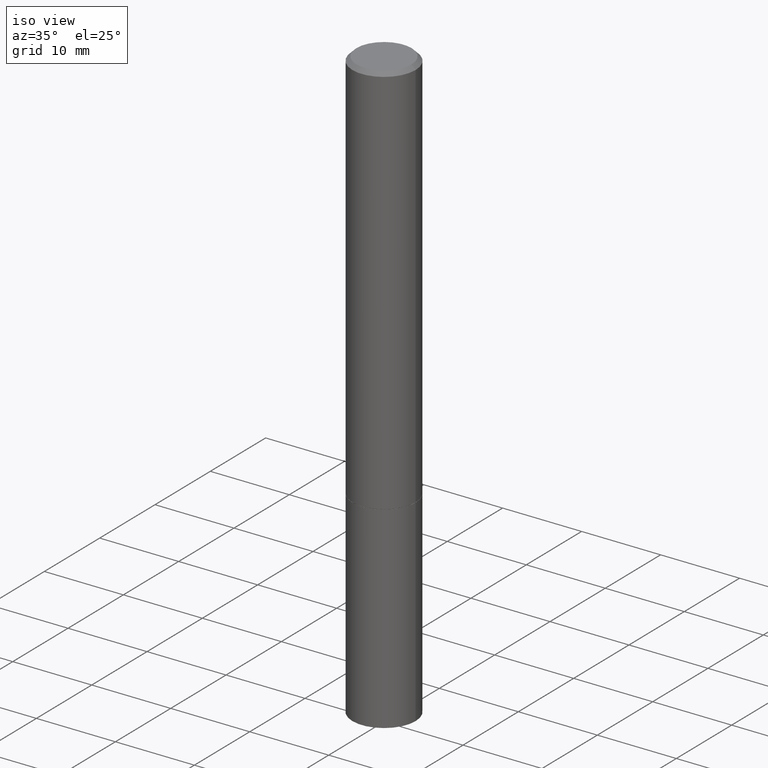
[diagram: clean part render]
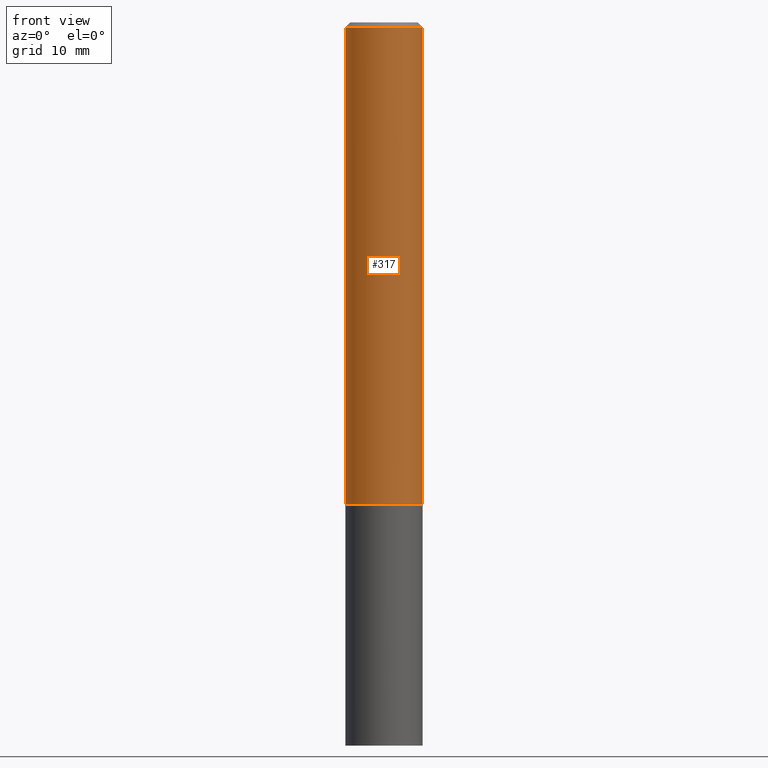
[diagram: tour spotlight — one face highlighted and labeled with its STEP entity id]
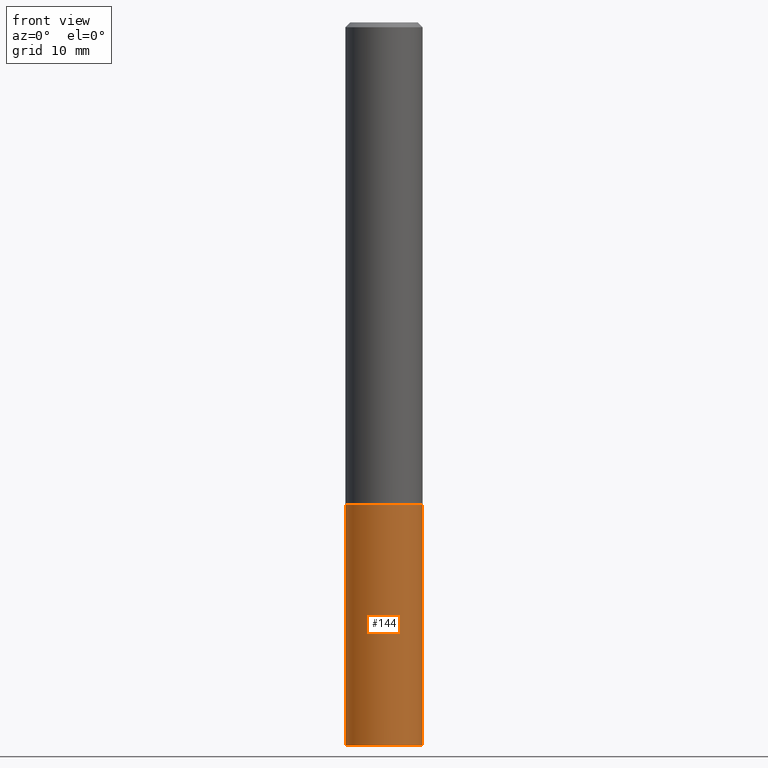
[diagram: tour spotlight — one face highlighted and labeled with its STEP entity id]
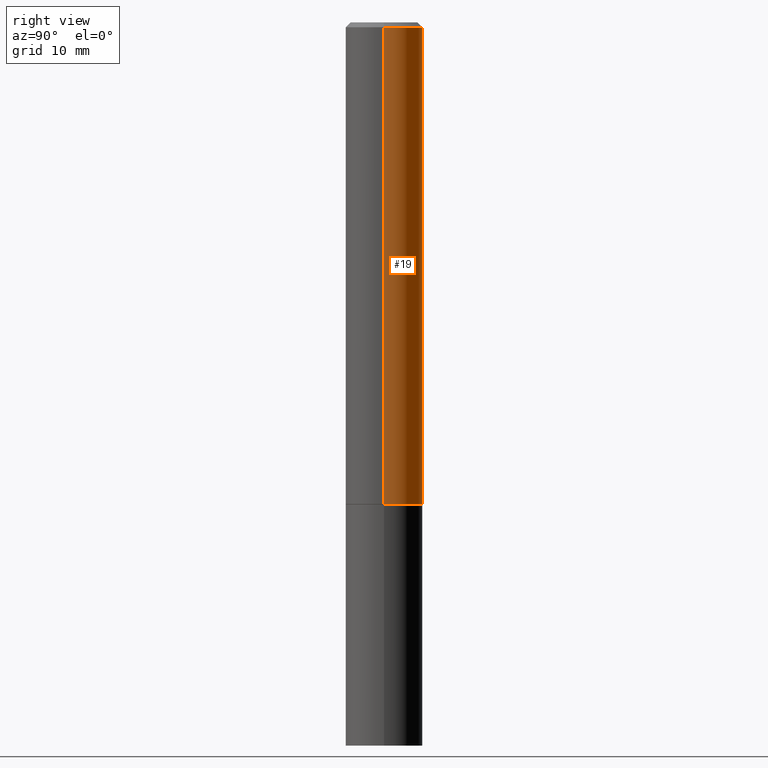
[diagram: tour spotlight — one face highlighted and labeled with its STEP entity id]
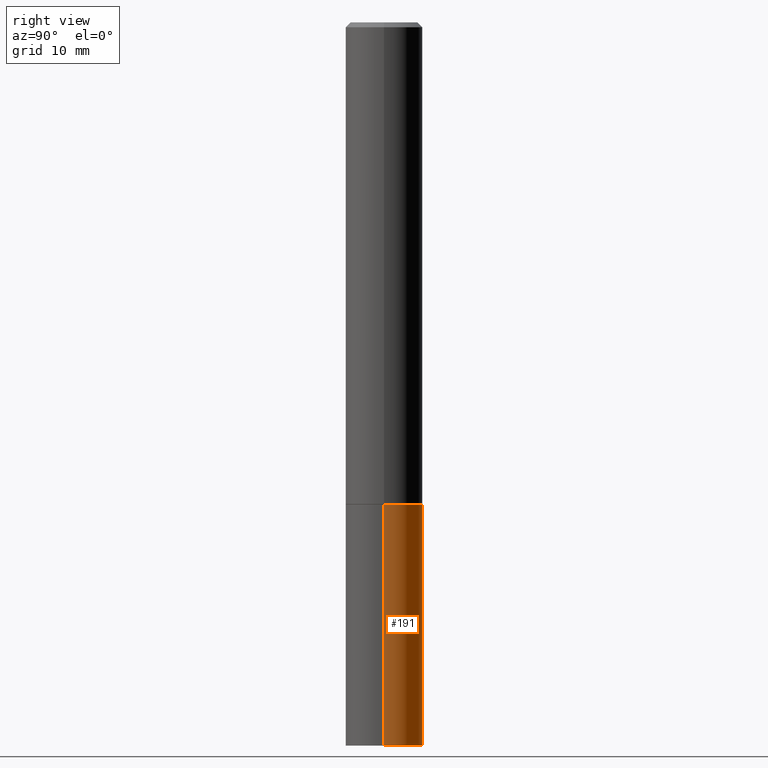
[diagram: tour spotlight — one face highlighted and labeled with its STEP entity id]
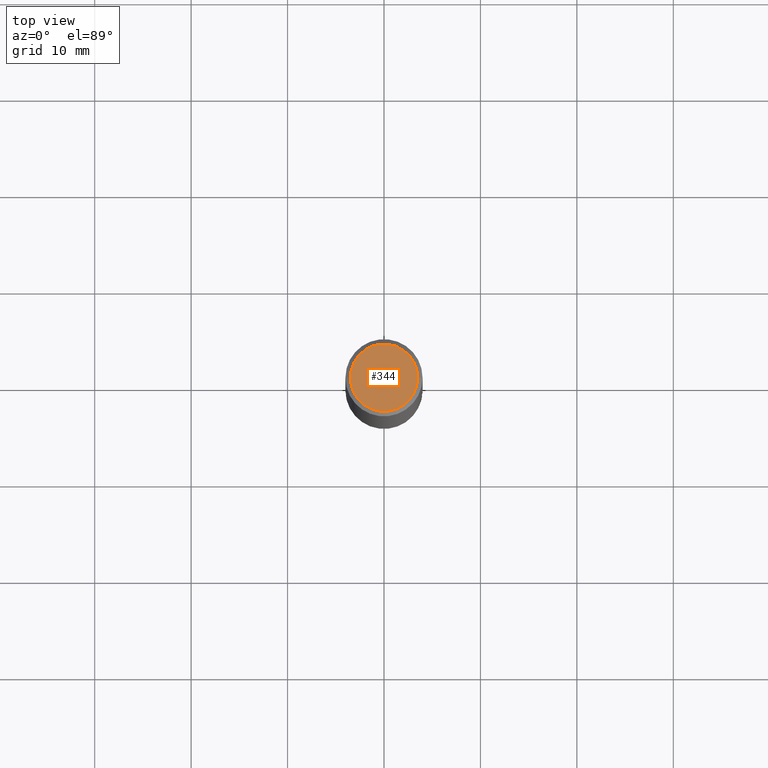
[diagram: tour spotlight — one face highlighted and labeled with its STEP entity id]
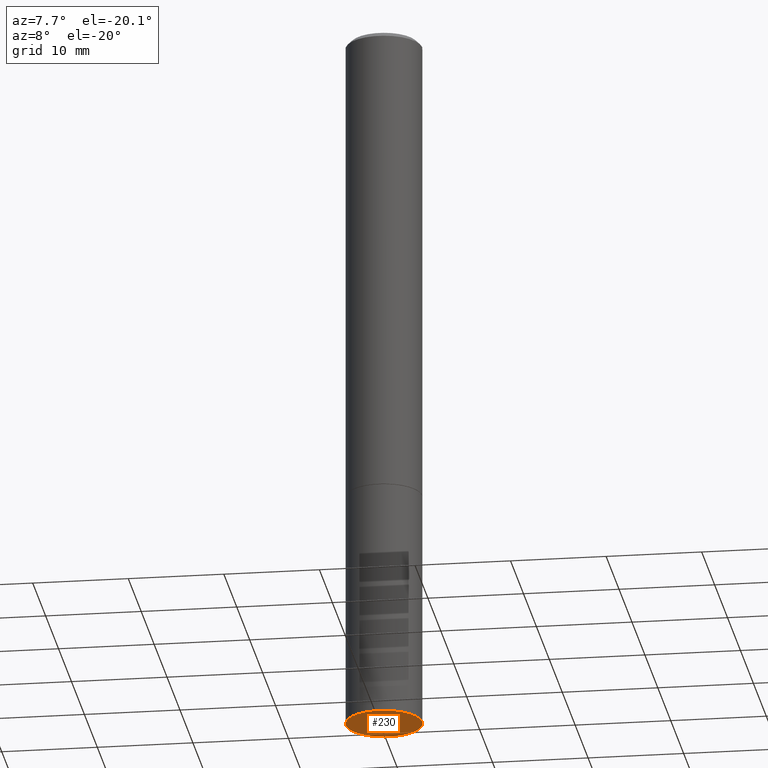
[diagram: tour spotlight — one face highlighted and labeled with its STEP entity id]
A machine part: a face-by-face anatomy tour. The part has 12 B-rep faces; the first image is the clean iso view, then the 6 largest visible faces are spotlighted one at a time (largest first), each with its STEP entity span.

Face 1 — front view, entity #317. In plain terms, the highlighted cylindrical surface (partial cylindrical patch) has radius 4.0005 mm, axis along (-0, 0, 1).
Definition (entity closure, byte-faithful):
#4 = CARTESIAN_POINT ( 'NONE',  ( -0.1574999999999998901, 1.119104808822157012E-15, -7.747322767151471379E-30 ) ) ;
#6 = VERTEX_POINT ( 'NONE', #175 ) ;
#13 = CARTESIAN_POINT ( 'NONE',  ( 4.890937612370280165E-31, -6.982962677686301470E-17, -0.02000000000000003164 ) ) ;
#21 = AXIS2_PLACEMENT_3D ( 'NONE', #340, #167, #64 ) ;
#26 = LINE ( 'NONE', #114, #40 ) ;
#31 = CIRCLE ( 'NONE', #239, 0.1575000000000000011 ) ;
#33 = EDGE_CURVE ( 'NONE', #6, #146, #216, .T. ) ;
#40 = VECTOR ( 'NONE', #333, 39.37007874015748143 ) ;
#47 = ORIENTED_EDGE ( 'NONE', *, *, #196, .T. ) ;
#64 = DIRECTION ( 'NONE',  ( 1.000000000000000000, -6.982962677686266711E-15, 4.876176775795935793E-29 ) ) ;
#66 = CARTESIAN_POINT ( 'NONE',  ( 4.811459876169255671E-29, -6.869489534173887122E-15, -1.967499999999999805 ) ) ;
#75 = ORIENTED_EDGE ( 'NONE', *, *, #358, .F. ) ;
#78 = CARTESIAN_POINT ( 'NONE',  ( -0.1575000000000000011, -2.350554771653214846E-15, -1.967499999999999805 ) ) ;
#85 = CARTESIAN_POINT ( 'NONE',  ( 0.1574999999999997791, -1.150358061425877894E-15, -0.02000000000000003164 ) ) ;
#87 = EDGE_CURVE ( 'NONE', #259, #284, #31, .T. ) ;
#91 = DIRECTION ( 'NONE',  ( -2.445468806185136877E-29, 3.491481338843145188E-15, 1.000000000000000000 ) ) ;
#101 = ORIENTED_EDGE ( 'NONE', *, *, #33, .F. ) ;
#114 = CARTESIAN_POINT ( 'NONE',  ( 0.1574999999999998901, -1.099816621735586297E-15, 7.679978421878593829E-30 ) ) ;
#126 = CARTESIAN_POINT ( 'NONE',  ( 0.1575000000000000011, -7.969306155909475391E-15, -1.967499999999999805 ) ) ;
#139 = CYLINDRICAL_SURFACE ( 'NONE', #21, 0.1574999999999998901 ) ;
#146 = VERTEX_POINT ( 'NONE', #85 ) ;
#167 = DIRECTION ( 'NONE',  ( -2.445468806185136597E-29, 3.491481338843145583E-15, 1.000000000000000000 ) ) ;
#171 = DIRECTION ( 'NONE',  ( -2.445468806185136597E-29, 3.491481338843145583E-15, 1.000000000000000000 ) ) ;
#173 = EDGE_LOOP ( 'NONE', ( #75, #209, #47, #101 ) ) ;
#175 = CARTESIAN_POINT ( 'NONE',  ( -0.1574999999999997791, 1.029986994958722604E-15, -0.02000000000000003164 ) ) ;
#196 = EDGE_CURVE ( 'NONE', #284, #146, #26, .T. ) ;
#207 = DIRECTION ( 'NONE',  ( -2.445468806185136597E-29, 3.491481338843145583E-15, 1.000000000000000000 ) ) ;
#209 = ORIENTED_EDGE ( 'NONE', *, *, #87, .T. ) ;
#216 = CIRCLE ( 'NONE', #275, 0.1574999999999997791 ) ;
#239 = AXIS2_PLACEMENT_3D ( 'NONE', #66, #171, #281 ) ;
#257 = FACE_OUTER_BOUND ( 'NONE', #173, .T. ) ;
#259 = VERTEX_POINT ( 'NONE', #78 ) ;
#275 = AXIS2_PLACEMENT_3D ( 'NONE', #13, #207, #285 ) ;
#281 = DIRECTION ( 'NONE',  ( 1.000000000000000000, -6.982962677686268288E-15, 0.000000000000000000 ) ) ;
#284 = VERTEX_POINT ( 'NONE', #126 ) ;
#285 = DIRECTION ( 'NONE',  ( 1.000000000000000000, -6.982962677686266711E-15, 0.000000000000000000 ) ) ;
#309 = VECTOR ( 'NONE', #91, 39.37007874015748143 ) ;
#317 = ADVANCED_FACE ( 'NONE', ( #257 ), #139, .T. ) ;
#333 = DIRECTION ( 'NONE',  ( -2.445468806185136877E-29, 3.491481338843145188E-15, 1.000000000000000000 ) ) ;
#338 = LINE ( 'NONE', #4, #309 ) ;
#340 = CARTESIAN_POINT ( 'NONE',  ( 0.000000000000000000, 0.000000000000000000, 0.000000000000000000 ) ) ;
#358 = EDGE_CURVE ( 'NONE', #259, #6, #338, .T. ) ;

Face 2 — front view, entity #144. In plain terms, the highlighted cylindrical surface (partial cylindrical patch) has radius 4.0005 mm, axis along (-0, 0, 1).
Definition (entity closure, byte-faithful):
#11 = EDGE_CURVE ( 'NONE', #282, #355, #236, .T. ) ;
#30 = CARTESIAN_POINT ( 'NONE',  ( 0.1575000000000000011, -1.140946271907162522E-14, -2.952799999999999869 ) ) ;
#41 = AXIS2_PLACEMENT_3D ( 'NONE', #192, #188, #185 ) ;
#50 = VECTOR ( 'NONE', #313, 39.37007874015748143 ) ;
#55 = ORIENTED_EDGE ( 'NONE', *, *, #197, .F. ) ;
#62 = DIRECTION ( 'NONE',  ( -2.445468806185136597E-29, 3.491481338843145583E-15, 1.000000000000000000 ) ) ;
#86 = LINE ( 'NONE', #248, #320 ) ;
#88 = CIRCLE ( 'NONE', #136, 0.1575000000000000011 ) ;
#108 = VERTEX_POINT ( 'NONE', #163 ) ;
#113 = EDGE_CURVE ( 'NONE', #108, #182, #86, .T. ) ;
#117 = CYLINDRICAL_SURFACE ( 'NONE', #41, 0.1575000000000000011 ) ;
#130 = ORIENTED_EDGE ( 'NONE', *, *, #113, .F. ) ;
#134 = CARTESIAN_POINT ( 'NONE',  ( 4.813905344975440714E-29, -6.872981015512730918E-15, -1.968499999999999694 ) ) ;
#136 = AXIS2_PLACEMENT_3D ( 'NONE', #134, #154, #195 ) ;
#143 = CIRCLE ( 'NONE', #343, 0.1575000000000000011 ) ;
#144 = ADVANCED_FACE ( 'NONE', ( #160 ), #117, .T. ) ;
#154 = DIRECTION ( 'NONE',  ( -2.445468806185136597E-29, 3.491481338843145583E-15, 1.000000000000000000 ) ) ;
#160 = FACE_OUTER_BOUND ( 'NONE', #178, .T. ) ;
#161 = DIRECTION ( 'NONE',  ( -2.445468806185136877E-29, 3.491481338843145188E-15, 1.000000000000000000 ) ) ;
#163 = CARTESIAN_POINT ( 'NONE',  ( -0.1575000000000000011, -7.472208747602227514E-15, -2.952799999999999869 ) ) ;
#172 = ORIENTED_EDGE ( 'NONE', *, *, #11, .T. ) ;
#178 = EDGE_LOOP ( 'NONE', ( #130, #237, #172, #55 ) ) ;
#182 = VERTEX_POINT ( 'NONE', #251 ) ;
#185 = DIRECTION ( 'NONE',  ( 1.000000000000000000, -6.982962677686265922E-15, 4.876176775795935232E-29 ) ) ;
#188 = DIRECTION ( 'NONE',  ( -2.445468806185136597E-29, 3.491481338843145583E-15, 1.000000000000000000 ) ) ;
#192 = CARTESIAN_POINT ( 'NONE',  ( 0.000000000000000000, 0.000000000000000000, 0.000000000000000000 ) ) ;
#195 = DIRECTION ( 'NONE',  ( 1.000000000000000000, -6.982962677686268288E-15, 0.000000000000000000 ) ) ;
#197 = EDGE_CURVE ( 'NONE', #182, #355, #88, .T. ) ;
#229 = DIRECTION ( 'NONE',  ( 1.000000000000000000, -6.982962677686261977E-15, 0.000000000000000000 ) ) ;
#236 = LINE ( 'NONE', #256, #50 ) ;
#237 = ORIENTED_EDGE ( 'NONE', *, *, #291, .T. ) ;
#248 = CARTESIAN_POINT ( 'NONE',  ( -0.1575000000000000011, 1.119104808822157801E-15, -7.747322767151475583E-30 ) ) ;
#251 = CARTESIAN_POINT ( 'NONE',  ( -0.1575000000000000011, -7.472208747602227514E-15, -1.968499999999999694 ) ) ;
#256 = CARTESIAN_POINT ( 'NONE',  ( 0.1575000000000000011, -1.099816621735586889E-15, 7.679978421878598033E-30 ) ) ;
#274 = CARTESIAN_POINT ( 'NONE',  ( 7.220980290903470182E-29, -1.030964609733603853E-14, -2.952799999999999869 ) ) ;
#278 = CARTESIAN_POINT ( 'NONE',  ( 0.1575000000000000011, -7.972797637248318399E-15, -1.968499999999999694 ) ) ;
#282 = VERTEX_POINT ( 'NONE', #30 ) ;
#291 = EDGE_CURVE ( 'NONE', #108, #282, #143, .T. ) ;
#313 = DIRECTION ( 'NONE',  ( -2.445468806185136877E-29, 3.491481338843145188E-15, 1.000000000000000000 ) ) ;
#320 = VECTOR ( 'NONE', #161, 39.37007874015748143 ) ;
#343 = AXIS2_PLACEMENT_3D ( 'NONE', #274, #62, #229 ) ;
#355 = VERTEX_POINT ( 'NONE', #278 ) ;

Face 3 — right view, entity #19. In plain terms, the highlighted cylindrical surface (partial cylindrical patch) has radius 4.0005 mm, axis along (-0, 0, 1).
Definition (entity closure, byte-faithful):
#4 = CARTESIAN_POINT ( 'NONE',  ( -0.1574999999999998901, 1.119104808822157012E-15, -7.747322767151471379E-30 ) ) ;
#6 = VERTEX_POINT ( 'NONE', #175 ) ;
#16 = FACE_OUTER_BOUND ( 'NONE', #204, .T. ) ;
#19 = ADVANCED_FACE ( 'NONE', ( #16 ), #68, .T. ) ;
#26 = LINE ( 'NONE', #114, #40 ) ;
#38 = DIRECTION ( 'NONE',  ( -2.445468806185136597E-29, 3.491481338843145583E-15, 1.000000000000000000 ) ) ;
#40 = VECTOR ( 'NONE', #333, 39.37007874015748143 ) ;
#51 = AXIS2_PLACEMENT_3D ( 'NONE', #169, #123, #227 ) ;
#68 = CYLINDRICAL_SURFACE ( 'NONE', #125, 0.1574999999999998901 ) ;
#69 = ORIENTED_EDGE ( 'NONE', *, *, #196, .F. ) ;
#70 = EDGE_CURVE ( 'NONE', #146, #6, #140, .T. ) ;
#78 = CARTESIAN_POINT ( 'NONE',  ( -0.1575000000000000011, -2.350554771653214846E-15, -1.967499999999999805 ) ) ;
#85 = CARTESIAN_POINT ( 'NONE',  ( 0.1574999999999997791, -1.150358061425877894E-15, -0.02000000000000003164 ) ) ;
#91 = DIRECTION ( 'NONE',  ( -2.445468806185136877E-29, 3.491481338843145188E-15, 1.000000000000000000 ) ) ;
#96 = AXIS2_PLACEMENT_3D ( 'NONE', #288, #200, #311 ) ;
#114 = CARTESIAN_POINT ( 'NONE',  ( 0.1574999999999998901, -1.099816621735586297E-15, 7.679978421878593829E-30 ) ) ;
#123 = DIRECTION ( 'NONE',  ( -2.445468806185136597E-29, 3.491481338843145583E-15, 1.000000000000000000 ) ) ;
#125 = AXIS2_PLACEMENT_3D ( 'NONE', #283, #38, #181 ) ;
#126 = CARTESIAN_POINT ( 'NONE',  ( 0.1575000000000000011, -7.969306155909475391E-15, -1.967499999999999805 ) ) ;
#140 = CIRCLE ( 'NONE', #96, 0.1574999999999997791 ) ;
#141 = CIRCLE ( 'NONE', #51, 0.1575000000000000011 ) ;
#146 = VERTEX_POINT ( 'NONE', #85 ) ;
#150 = ORIENTED_EDGE ( 'NONE', *, *, #358, .T. ) ;
#169 = CARTESIAN_POINT ( 'NONE',  ( 4.811459876169255671E-29, -6.869489534173887122E-15, -1.967499999999999805 ) ) ;
#175 = CARTESIAN_POINT ( 'NONE',  ( -0.1574999999999997791, 1.029986994958722604E-15, -0.02000000000000003164 ) ) ;
#181 = DIRECTION ( 'NONE',  ( 1.000000000000000000, -6.982962677686266711E-15, 4.876176775795935793E-29 ) ) ;
#196 = EDGE_CURVE ( 'NONE', #284, #146, #26, .T. ) ;
#200 = DIRECTION ( 'NONE',  ( -2.445468806185136597E-29, 3.491481338843145583E-15, 1.000000000000000000 ) ) ;
#204 = EDGE_LOOP ( 'NONE', ( #359, #150, #318, #69 ) ) ;
#227 = DIRECTION ( 'NONE',  ( 1.000000000000000000, -6.982962677686268288E-15, 0.000000000000000000 ) ) ;
#259 = VERTEX_POINT ( 'NONE', #78 ) ;
#283 = CARTESIAN_POINT ( 'NONE',  ( 0.000000000000000000, 0.000000000000000000, 0.000000000000000000 ) ) ;
#284 = VERTEX_POINT ( 'NONE', #126 ) ;
#288 = CARTESIAN_POINT ( 'NONE',  ( 4.890937612370280165E-31, -6.982962677686301470E-17, -0.02000000000000003164 ) ) ;
#296 = EDGE_CURVE ( 'NONE', #284, #259, #141, .T. ) ;
#309 = VECTOR ( 'NONE', #91, 39.37007874015748143 ) ;
#311 = DIRECTION ( 'NONE',  ( 1.000000000000000000, -6.982962677686266711E-15, 0.000000000000000000 ) ) ;
#318 = ORIENTED_EDGE ( 'NONE', *, *, #70, .F. ) ;
#333 = DIRECTION ( 'NONE',  ( -2.445468806185136877E-29, 3.491481338843145188E-15, 1.000000000000000000 ) ) ;
#338 = LINE ( 'NONE', #4, #309 ) ;
#358 = EDGE_CURVE ( 'NONE', #259, #6, #338, .T. ) ;
#359 = ORIENTED_EDGE ( 'NONE', *, *, #296, .T. ) ;

Face 4 — right view, entity #191. In plain terms, the highlighted cylindrical surface (partial cylindrical patch) has radius 4.0005 mm, axis along (-0, 0, 1).
Definition (entity closure, byte-faithful):
#1 = DIRECTION ( 'NONE',  ( 1.000000000000000000, -6.982962677686265922E-15, 4.876176775795935232E-29 ) ) ;
#11 = EDGE_CURVE ( 'NONE', #282, #355, #236, .T. ) ;
#30 = CARTESIAN_POINT ( 'NONE',  ( 0.1575000000000000011, -1.140946271907162522E-14, -2.952799999999999869 ) ) ;
#36 = EDGE_CURVE ( 'NONE', #282, #108, #193, .T. ) ;
#50 = VECTOR ( 'NONE', #313, 39.37007874015748143 ) ;
#58 = ORIENTED_EDGE ( 'NONE', *, *, #303, .F. ) ;
#79 = ORIENTED_EDGE ( 'NONE', *, *, #36, .T. ) ;
#86 = LINE ( 'NONE', #248, #320 ) ;
#93 = AXIS2_PLACEMENT_3D ( 'NONE', #272, #293, #1 ) ;
#97 = CIRCLE ( 'NONE', #365, 0.1575000000000000011 ) ;
#108 = VERTEX_POINT ( 'NONE', #163 ) ;
#113 = EDGE_CURVE ( 'NONE', #108, #182, #86, .T. ) ;
#149 = DIRECTION ( 'NONE',  ( -2.445468806185136597E-29, 3.491481338843145583E-15, 1.000000000000000000 ) ) ;
#161 = DIRECTION ( 'NONE',  ( -2.445468806185136877E-29, 3.491481338843145188E-15, 1.000000000000000000 ) ) ;
#163 = CARTESIAN_POINT ( 'NONE',  ( -0.1575000000000000011, -7.472208747602227514E-15, -2.952799999999999869 ) ) ;
#170 = DIRECTION ( 'NONE',  ( 1.000000000000000000, -6.982962677686268288E-15, 0.000000000000000000 ) ) ;
#182 = VERTEX_POINT ( 'NONE', #251 ) ;
#191 = ADVANCED_FACE ( 'NONE', ( #218 ), #270, .T. ) ;
#193 = CIRCLE ( 'NONE', #363, 0.1575000000000000011 ) ;
#198 = DIRECTION ( 'NONE',  ( -2.445468806185136597E-29, 3.491481338843145583E-15, 1.000000000000000000 ) ) ;
#218 = FACE_OUTER_BOUND ( 'NONE', #298, .T. ) ;
#236 = LINE ( 'NONE', #256, #50 ) ;
#248 = CARTESIAN_POINT ( 'NONE',  ( -0.1575000000000000011, 1.119104808822157801E-15, -7.747322767151475583E-30 ) ) ;
#251 = CARTESIAN_POINT ( 'NONE',  ( -0.1575000000000000011, -7.472208747602227514E-15, -1.968499999999999694 ) ) ;
#256 = CARTESIAN_POINT ( 'NONE',  ( 0.1575000000000000011, -1.099816621735586889E-15, 7.679978421878598033E-30 ) ) ;
#270 = CYLINDRICAL_SURFACE ( 'NONE', #93, 0.1575000000000000011 ) ;
#272 = CARTESIAN_POINT ( 'NONE',  ( 0.000000000000000000, 0.000000000000000000, 0.000000000000000000 ) ) ;
#278 = CARTESIAN_POINT ( 'NONE',  ( 0.1575000000000000011, -7.972797637248318399E-15, -1.968499999999999694 ) ) ;
#282 = VERTEX_POINT ( 'NONE', #30 ) ;
#287 = DIRECTION ( 'NONE',  ( 1.000000000000000000, -6.982962677686261977E-15, 0.000000000000000000 ) ) ;
#293 = DIRECTION ( 'NONE',  ( -2.445468806185136597E-29, 3.491481338843145583E-15, 1.000000000000000000 ) ) ;
#298 = EDGE_LOOP ( 'NONE', ( #79, #325, #58, #326 ) ) ;
#303 = EDGE_CURVE ( 'NONE', #355, #182, #97, .T. ) ;
#313 = DIRECTION ( 'NONE',  ( -2.445468806185136877E-29, 3.491481338843145188E-15, 1.000000000000000000 ) ) ;
#320 = VECTOR ( 'NONE', #161, 39.37007874015748143 ) ;
#321 = CARTESIAN_POINT ( 'NONE',  ( 7.220980290903470182E-29, -1.030964609733603853E-14, -2.952799999999999869 ) ) ;
#325 = ORIENTED_EDGE ( 'NONE', *, *, #113, .T. ) ;
#326 = ORIENTED_EDGE ( 'NONE', *, *, #11, .F. ) ;
#341 = CARTESIAN_POINT ( 'NONE',  ( 4.813905344975440714E-29, -6.872981015512730918E-15, -1.968499999999999694 ) ) ;
#355 = VERTEX_POINT ( 'NONE', #278 ) ;
#363 = AXIS2_PLACEMENT_3D ( 'NONE', #321, #149, #287 ) ;
#365 = AXIS2_PLACEMENT_3D ( 'NONE', #341, #198, #170 ) ;

Face 5 — top view, entity #344. In plain terms, the highlighted planar face has unit normal (0, -0, -1).
Definition (entity closure, byte-faithful):
#18 = VERTEX_POINT ( 'NONE', #74 ) ;
#32 = AXIS2_PLACEMENT_3D ( 'NONE', #110, #213, #328 ) ;
#34 = AXIS2_PLACEMENT_3D ( 'NONE', #366, #335, #56 ) ;
#37 = CARTESIAN_POINT ( 'NONE',  ( 9.601573681818600950E-16, 0.1374999999999997891, -4.779444278458816091E-16 ) ) ;
#39 = VERTEX_POINT ( 'NONE', #152 ) ;
#56 = DIRECTION ( 'NONE',  ( 1.000000000000000000, -6.982962677686267499E-15, 4.876173381029107889E-29 ) ) ;
#73 = CIRCLE ( 'NONE', #32, 0.1374999999999997891 ) ;
#74 = CARTESIAN_POINT ( 'NONE',  ( 0.1374999999999997891, -1.046838268059730914E-15, 4.268512490107428597E-18 ) ) ;
#92 = FACE_OUTER_BOUND ( 'NONE', #348, .T. ) ;
#99 = EDGE_CURVE ( 'NONE', #39, #18, #301, .T. ) ;
#110 = CARTESIAN_POINT ( 'NONE',  ( -1.043851414335219820E-46, 1.490343170380447200E-32, 4.268512490100411279E-18 ) ) ;
#122 = DIRECTION ( 'NONE',  ( -1.000000000000000000, 6.982962677686265922E-15, -4.876176775795935793E-29 ) ) ;
#132 = ORIENTED_EDGE ( 'NONE', *, *, #255, .T. ) ;
#152 = CARTESIAN_POINT ( 'NONE',  ( -0.1374999999999997891, 9.950721815702913496E-16, 4.268512490093574228E-18 ) ) ;
#213 = DIRECTION ( 'NONE',  ( -2.445468806185136597E-29, 3.491481338843145583E-15, 1.000000000000000000 ) ) ;
#220 = DIRECTION ( 'NONE',  ( 2.438088387897960049E-29, -3.491481338843145188E-15, -1.000000000000000000 ) ) ;
#255 = EDGE_CURVE ( 'NONE', #18, #39, #73, .T. ) ;
#266 = ORIENTED_EDGE ( 'NONE', *, *, #99, .T. ) ;
#273 = PLANE ( 'NONE',  #279 ) ;
#279 = AXIS2_PLACEMENT_3D ( 'NONE', #37, #220, #122 ) ;
#301 = CIRCLE ( 'NONE', #34, 0.1374999999999997891 ) ;
#328 = DIRECTION ( 'NONE',  ( 1.000000000000000000, -6.982962677686267499E-15, 4.876173381029107889E-29 ) ) ;
#335 = DIRECTION ( 'NONE',  ( -2.445468806185136597E-29, 3.491481338843145583E-15, 1.000000000000000000 ) ) ;
#344 = ADVANCED_FACE ( 'NONE', ( #92 ), #273, .F. ) ;
#348 = EDGE_LOOP ( 'NONE', ( #266, #132 ) ) ;
#366 = CARTESIAN_POINT ( 'NONE',  ( -1.043851414335219820E-46, 1.490343170380447200E-32, 4.268512490100411279E-18 ) ) ;

Face 6 — auxiliary view, entity #230. In plain terms, the highlighted planar face has unit normal (0, -0, -1).
Definition (entity closure, byte-faithful):
#22 = CARTESIAN_POINT ( 'NONE',  ( 1.099816621735659069E-15, 0.1574999999999896760, -2.952800000000000313 ) ) ;
#28 = AXIS2_PLACEMENT_3D ( 'NONE', #22, #131, #337 ) ;
#30 = CARTESIAN_POINT ( 'NONE',  ( 0.1575000000000000011, -1.140946271907162522E-14, -2.952799999999999869 ) ) ;
#36 = EDGE_CURVE ( 'NONE', #282, #108, #193, .T. ) ;
#62 = DIRECTION ( 'NONE',  ( -2.445468806185136597E-29, 3.491481338843145583E-15, 1.000000000000000000 ) ) ;
#67 = EDGE_LOOP ( 'NONE', ( #148, #104 ) ) ;
#104 = ORIENTED_EDGE ( 'NONE', *, *, #291, .F. ) ;
#108 = VERTEX_POINT ( 'NONE', #163 ) ;
#131 = DIRECTION ( 'NONE',  ( 2.438088387897960049E-29, -3.491481338843145188E-15, -1.000000000000000000 ) ) ;
#143 = CIRCLE ( 'NONE', #343, 0.1575000000000000011 ) ;
#148 = ORIENTED_EDGE ( 'NONE', *, *, #36, .F. ) ;
#149 = DIRECTION ( 'NONE',  ( -2.445468806185136597E-29, 3.491481338843145583E-15, 1.000000000000000000 ) ) ;
#163 = CARTESIAN_POINT ( 'NONE',  ( -0.1575000000000000011, -7.472208747602227514E-15, -2.952799999999999869 ) ) ;
#193 = CIRCLE ( 'NONE', #363, 0.1575000000000000011 ) ;
#221 = PLANE ( 'NONE',  #28 ) ;
#229 = DIRECTION ( 'NONE',  ( 1.000000000000000000, -6.982962677686261977E-15, 0.000000000000000000 ) ) ;
#230 = ADVANCED_FACE ( 'NONE', ( #263 ), #221, .T. ) ;
#263 = FACE_OUTER_BOUND ( 'NONE', #67, .T. ) ;
#274 = CARTESIAN_POINT ( 'NONE',  ( 7.220980290903470182E-29, -1.030964609733603853E-14, -2.952799999999999869 ) ) ;
#282 = VERTEX_POINT ( 'NONE', #30 ) ;
#287 = DIRECTION ( 'NONE',  ( 1.000000000000000000, -6.982962677686261977E-15, 0.000000000000000000 ) ) ;
#291 = EDGE_CURVE ( 'NONE', #108, #282, #143, .T. ) ;
#321 = CARTESIAN_POINT ( 'NONE',  ( 7.220980290903470182E-29, -1.030964609733603853E-14, -2.952799999999999869 ) ) ;
#337 = DIRECTION ( 'NONE',  ( -1.000000000000000000, 6.982962677686265922E-15, -4.876176775795935793E-29 ) ) ;
#343 = AXIS2_PLACEMENT_3D ( 'NONE', #274, #62, #229 ) ;
#363 = AXIS2_PLACEMENT_3D ( 'NONE', #321, #149, #287 ) ;